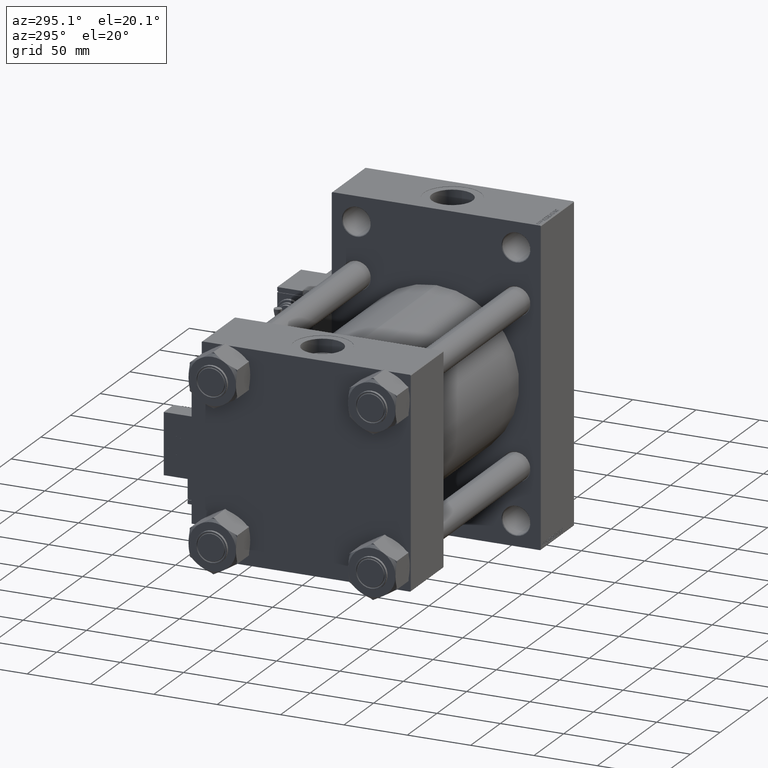
[diagram: clean part render]
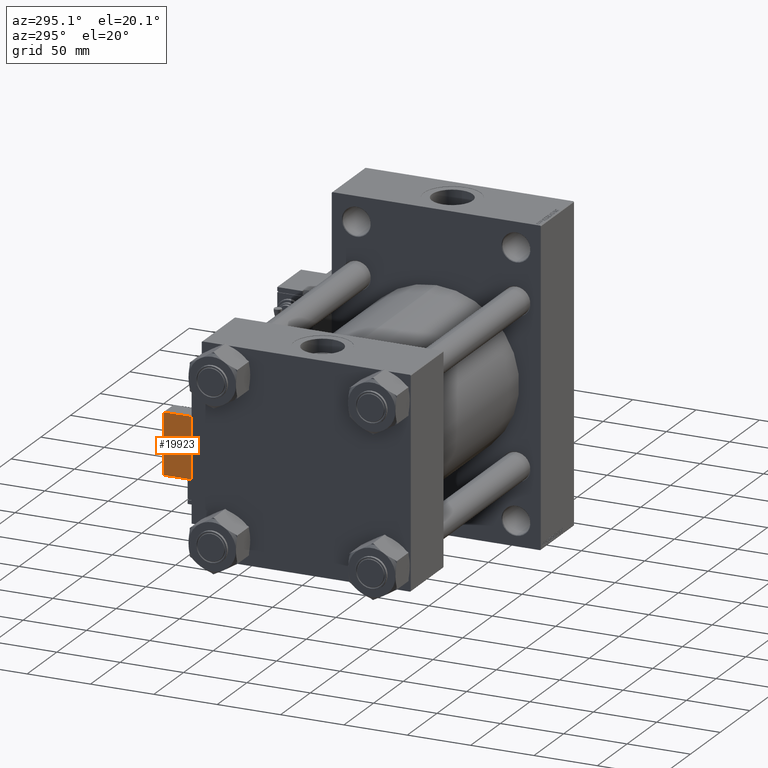
[diagram: same view with one face highlighted and labeled with its STEP entity id]
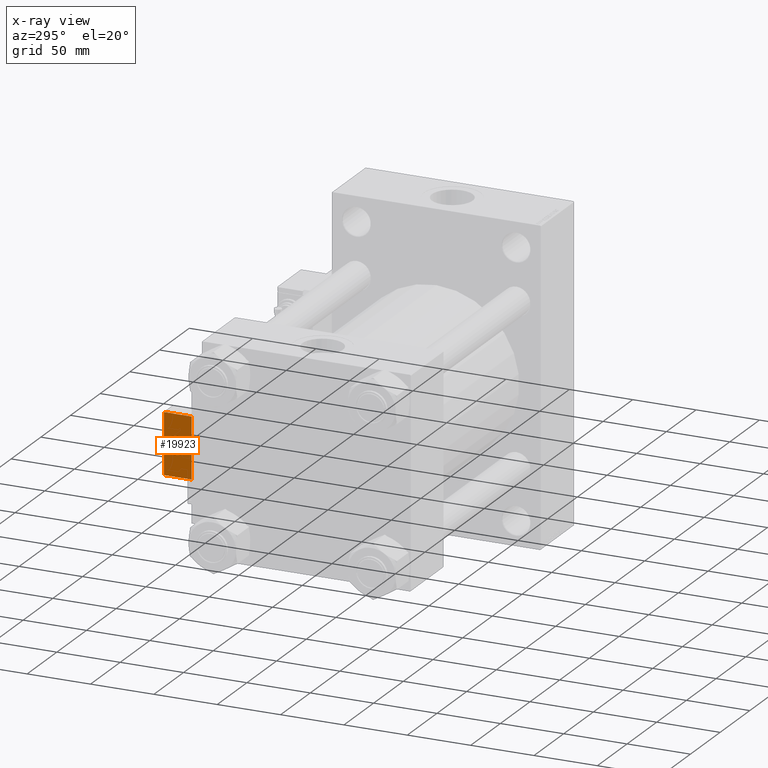
[diagram: x-ray of the same camera — body ghosted, the highlighted face saturated]
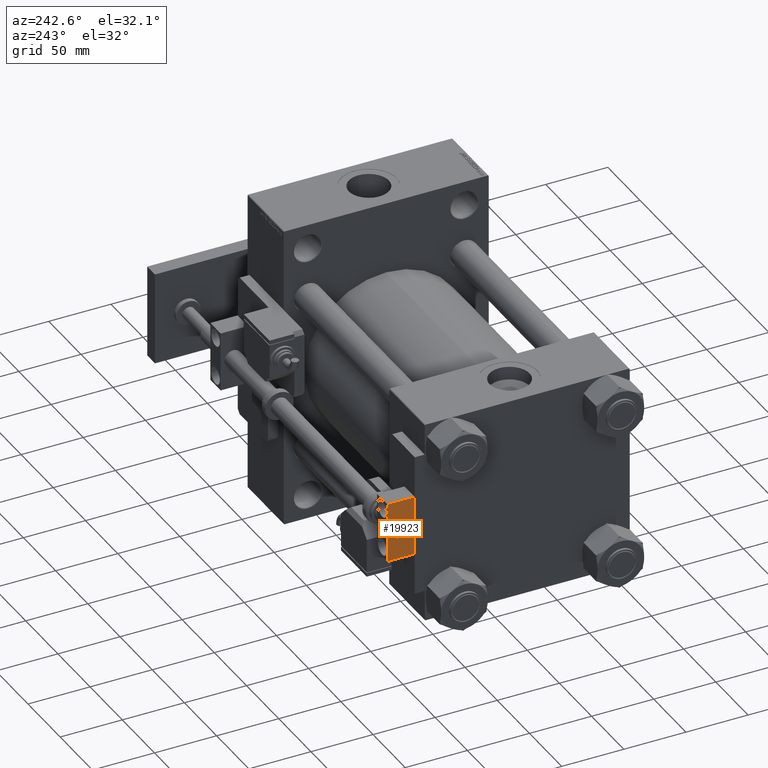
[diagram: same view with one face highlighted and labeled with its STEP entity id]
A machine part, auxiliary view. The second image highlights one B-rep face of the part: STEP entity #19923.
The next image is the same camera in x-ray: the body ghosted, the highlighted face saturated — about 0% of this face is hidden behind the body in this view.
A second angle (auxiliary view) of the same face is appended — the face is thin or edge-on in the first view.
In plain terms, the highlighted planar face has unit normal (1, 0, 0).
Its self-contained STEP definition (entity closure, byte-faithful):
#1285 = ORIENTED_EDGE ( 'NONE', *, *, #46834, .T. ) ;
#1793 = AXIS2_PLACEMENT_3D ( 'NONE', #49971, #28208, #16227 ) ;
#2882 = ORIENTED_EDGE ( 'NONE', *, *, #51113, .F. ) ;
#3077 = CARTESIAN_POINT ( 'NONE',  ( 23.99999999999999645, 10.99999999999999289, -16.00000000000000000 ) ) ;
#5291 = CARTESIAN_POINT ( 'NONE',  ( -23.99999999999999645, 11.00000000000000000, -16.00000000000000000 ) ) ;
#6726 = VERTEX_POINT ( 'NONE', #3077 ) ;
#7406 = DIRECTION ( 'NONE',  ( 1.000000000000000000, -7.228014483236697048E-17, 0.000000000000000000 ) ) ;
#8345 = DIRECTION ( 'NONE',  ( 1.000000000000000000, 0.000000000000000000, 0.000000000000000000 ) ) ;
#9240 = ORIENTED_EDGE ( 'NONE', *, *, #11051, .F. ) ;
#9544 = VECTOR ( 'NONE', #51575, 1000.000000000000000 ) ;
#11051 = EDGE_CURVE ( 'NONE', #6726, #45215, #30880, .T. ) ;
#11320 = ORIENTED_EDGE ( 'NONE', *, *, #37445, .T. ) ;
#11712 = DIRECTION ( 'NONE',  ( 1.000000000000000000, 0.000000000000000000, -0.000000000000000000 ) ) ;
#12690 = DIRECTION ( 'NONE',  ( 0.000000000000000000, 0.000000000000000000, 1.000000000000000000 ) ) ;
#14107 = CARTESIAN_POINT ( 'NONE',  ( 24.00000000000000000, -11.00000000000000000, -16.00000000000000000 ) ) ;
#16227 = DIRECTION ( 'NONE',  ( 1.000000000000000000, 0.000000000000000000, 0.000000000000000000 ) ) ;
#16363 = AXIS2_PLACEMENT_3D ( 'NONE', #32667, #20156, #11712 ) ;
#19141 = CARTESIAN_POINT ( 'NONE',  ( 23.99999999999999645, 10.99999999999999289, -16.00000000000000000 ) ) ;
#19387 = CARTESIAN_POINT ( 'NONE',  ( -23.99999999999999289, -10.99999999999999645, -16.00000000000000000 ) ) ;
#19880 = FACE_BOUND ( 'NONE', #38916, .T. ) ;
#19923 = ADVANCED_FACE ( 'NONE', ( #19880, #53101 ), #49821, .F. ) ;
#20156 = DIRECTION ( 'NONE',  ( 0.000000000000000000, 0.000000000000000000, 1.000000000000000000 ) ) ;
#21048 = CARTESIAN_POINT ( 'NONE',  ( 7.000000000000000000, 1.000000000000004441, -16.00000000000000000 ) ) ;
#26659 = VECTOR ( 'NONE', #7406, 1000.000000000000000 ) ;
#26854 = CARTESIAN_POINT ( 'NONE',  ( -23.99999999999999645, 11.00000000000000000, -16.00000000000000000 ) ) ;
#27912 = VECTOR ( 'NONE', #52363, 1000.000000000000000 ) ;
#28208 = DIRECTION ( 'NONE',  ( 0.000000000000000000, 0.000000000000000000, 1.000000000000000000 ) ) ;
#29964 = ORIENTED_EDGE ( 'NONE', *, *, #38720, .F. ) ;
#30092 = CARTESIAN_POINT ( 'NONE',  ( 0.000000000000000000, 1.000000000000004441, -16.00000000000000000 ) ) ;
#30383 = LINE ( 'NONE', #26854, #32537 ) ;
#30880 = LINE ( 'NONE', #5291, #9544 ) ;
#32537 = VECTOR ( 'NONE', #47001, 1000.000000000000000 ) ;
#32620 = AXIS2_PLACEMENT_3D ( 'NONE', #30092, #12690, #8345 ) ;
#32667 = CARTESIAN_POINT ( 'NONE',  ( 0.000000000000000000, 0.000000000000000000, -16.00000000000000000 ) ) ;
#33113 = CIRCLE ( 'NONE', #1793, 7.000000000000000000 ) ;
#33354 = VERTEX_POINT ( 'NONE', #14107 ) ;
#33499 = CARTESIAN_POINT ( 'NONE',  ( -7.000000000000000000, 1.000000000000005329, -16.00000000000000000 ) ) ;
#36058 = CIRCLE ( 'NONE', #32620, 7.000000000000000000 ) ;
#37445 = EDGE_CURVE ( 'NONE', #47391, #48574, #36058, .T. ) ;
#38720 = EDGE_CURVE ( 'NONE', #45215, #47819, #30383, .T. ) ;
#38916 = EDGE_LOOP ( 'NONE', ( #11320, #1285 ) ) ;
#39593 = CARTESIAN_POINT ( 'NONE',  ( -23.99999999999999645, 11.00000000000000000, -16.00000000000000000 ) ) ;
#39804 = LINE ( 'NONE', #19141, #27912 ) ;
#40321 = LINE ( 'NONE', #19387, #26659 ) ;
#41096 = EDGE_CURVE ( 'NONE', #47819, #33354, #40321, .T. ) ;
#42841 = ORIENTED_EDGE ( 'NONE', *, *, #41096, .F. ) ;
#45215 = VERTEX_POINT ( 'NONE', #39593 ) ;
#45660 = EDGE_LOOP ( 'NONE', ( #2882, #42841, #29964, #9240 ) ) ;
#46834 = EDGE_CURVE ( 'NONE', #48574, #47391, #33113, .T. ) ;
#47001 = DIRECTION ( 'NONE',  ( 1.577021341797097807E-16, -1.000000000000000000, 0.000000000000000000 ) ) ;
#47391 = VERTEX_POINT ( 'NONE', #21048 ) ;
#47819 = VERTEX_POINT ( 'NONE', #53802 ) ;
#48574 = VERTEX_POINT ( 'NONE', #33499 ) ;
#49821 = PLANE ( 'NONE',  #16363 ) ;
#49971 = CARTESIAN_POINT ( 'NONE',  ( 0.000000000000000000, 1.000000000000004441, -16.00000000000000000 ) ) ;
#51113 = EDGE_CURVE ( 'NONE', #33354, #6726, #39804, .T. ) ;
#51575 = DIRECTION ( 'NONE',  ( -1.000000000000000000, 1.445602896647339410E-16, -0.000000000000000000 ) ) ;
#52363 = DIRECTION ( 'NONE',  ( -1.577021341797098053E-16, 1.000000000000000000, -0.000000000000000000 ) ) ;
#53101 = FACE_OUTER_BOUND ( 'NONE', #45660, .T. ) ;
#53802 = CARTESIAN_POINT ( 'NONE',  ( -23.99999999999999289, -10.99999999999999645, -16.00000000000000000 ) ) ;